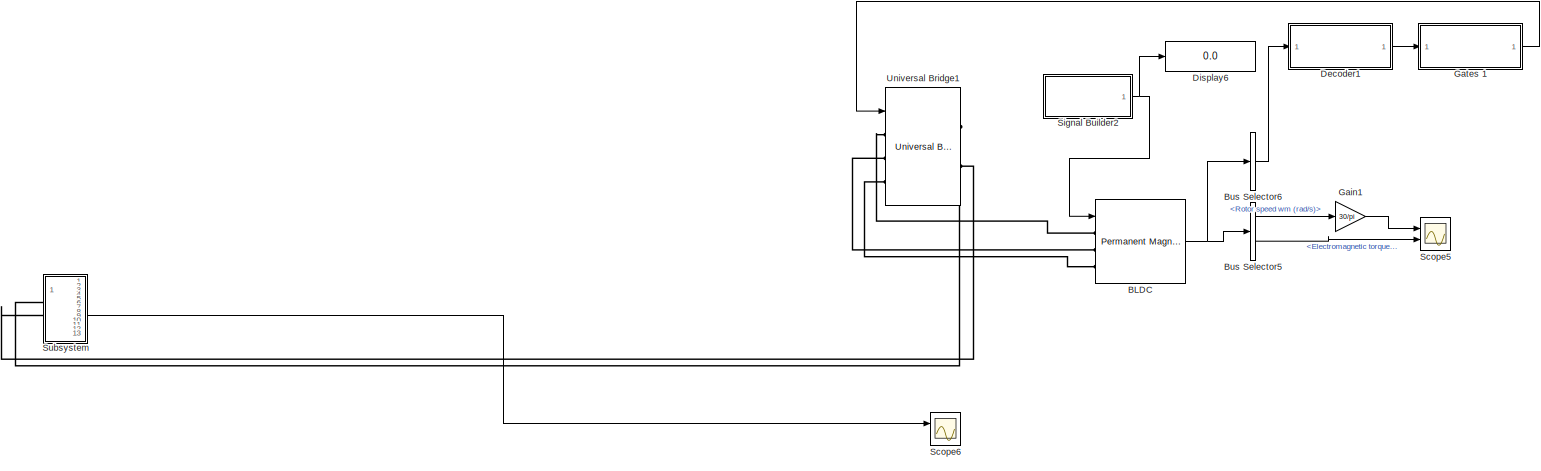
[diagram: root canvas - part 1/1, most of the canvas]
MODEL slx_0229b723f393
KIND model
CONFIG AbsTol = auto
CONFIG EnableMultiTasking = on
CONFIG FixedStep = auto
CONFIG MaxStep = auto
CONFIG MinStep = auto
CONFIG RelTol = 1e-3
CONFIG SampleTimeConstraint = Unconstrained
CONFIG SolverName = VariableStepAuto
CONFIG StartTime = 0.0
CONFIG StopTime = 50
BLOCK [Reference] BLDC  REF=powerlib/Machines/Permanent Magnet
Synchronous Machine
  Ports = [1, 1, 0, 0, 0, 3]
  SourceBlock = powerlib/Machines/Permanent Magnet\nSynchronous Machine
  SourceProductBaseCode = PS
  SourceType = Permanent Magnet Synchronous Machine
BLOCK [BusSelector] Bus Selector5
  OutputSignals = Rotor speed wm (rad/s),Electromagnetic torque Te (N*m)
  Ports = [1, 2]
BLOCK [BusSelector] Bus Selector6
  OutputAsBus = on
  OutputSignals = Hall effect signal h_a,Hall effect signal h_b,Hall effect signal h_c
  Ports = [1, 1]
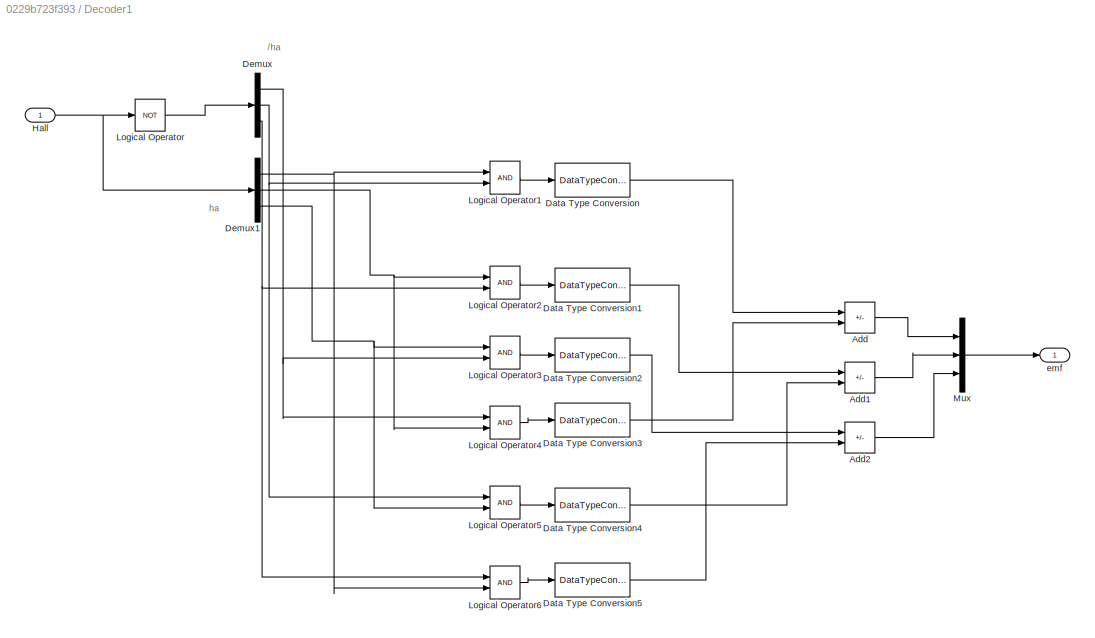
BLOCK [SubSystem] Decoder1
  Ports = [1, 1]
  RequestExecContextInheritance = off
BLOCK [Sum] Decoder1/Add
  IconShape = rectangular
  Inputs = +-
  Ports = [2, 1]
BLOCK [Sum] Decoder1/Add1
  IconShape = rectangular
  Inputs = +-
  Ports = [2, 1]
BLOCK [Sum] Decoder1/Add2
  IconShape = rectangular
  Inputs = +-
  Ports = [2, 1]
BLOCK [DataTypeConversion] Decoder1/Data Type Conversion
  RndMeth = Floor
  SaturateOnIntegerOverflow = off
BLOCK [DataTypeConversion] Decoder1/Data Type Conversion1
  RndMeth = Floor
  SaturateOnIntegerOverflow = off
BLOCK [DataTypeConversion] Decoder1/Data Type Conversion2
  RndMeth = Floor
  SaturateOnIntegerOverflow = off
BLOCK [DataTypeConversion] Decoder1/Data Type Conversion3
  RndMeth = Floor
  SaturateOnIntegerOverflow = off
BLOCK [DataTypeConversion] Decoder1/Data Type Conversion4
  RndMeth = Floor
  SaturateOnIntegerOverflow = off
BLOCK [DataTypeConversion] Decoder1/Data Type Conversion5
  RndMeth = Floor
  SaturateOnIntegerOverflow = off
BLOCK [Demux] Decoder1/Demux
  Outputs = 3
  Ports = [1, 3]
BLOCK [Demux] Decoder1/Demux1
  Outputs = 3
  Ports = [1, 3]
BLOCK [Inport] Decoder1/Hall
BLOCK [Logic] Decoder1/Logical Operator
  AllPortsSameDT = off
  Operator = NOT
  OutDataTypeStr = boolean
  Ports = [1, 1]
BLOCK [Logic] Decoder1/Logical Operator1
  AllPortsSameDT = off
  OutDataTypeStr = boolean
  Ports = [2, 1]
BLOCK [Logic] Decoder1/Logical Operator2
  AllPortsSameDT = off
  OutDataTypeStr = boolean
  Ports = [2, 1]
BLOCK [Logic] Decoder1/Logical Operator3
  AllPortsSameDT = off
  OutDataTypeStr = boolean
  Ports = [2, 1]
BLOCK [Logic] Decoder1/Logical Operator4
  AllPortsSameDT = off
  OutDataTypeStr = boolean
  Ports = [2, 1]
BLOCK [Logic] Decoder1/Logical Operator5
  AllPortsSameDT = off
  OutDataTypeStr = boolean
  Ports = [2, 1]
BLOCK [Logic] Decoder1/Logical Operator6
  AllPortsSameDT = off
  OutDataTypeStr = boolean
  Ports = [2, 1]
BLOCK [Mux] Decoder1/Mux
  DisplayOption = bar
  Inputs = 3
  Ports = [3, 1]
BLOCK [Outport] Decoder1/emf
BLOCK [Display] Display6
  Decimation = 1
  Ports = [1]
BLOCK [Gain] Gain1
  Gain = 30/pi
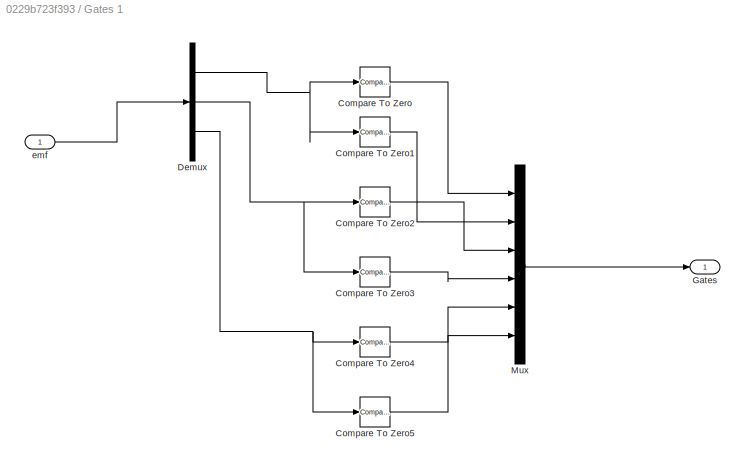
BLOCK [SubSystem] Gates 1
  Ports = [1, 1]
  RequestExecContextInheritance = off
BLOCK [Reference] Gates 1/Compare To Zero  REF=simulink/Logic and Bit
Operations/Compare
To Zero
  Ports = [1, 1]
  SourceBlock = simulink/Logic and Bit\nOperations/Compare\nTo Zero
  SourceProductBaseCode = SL
  SourceType = Compare To Zero
BLOCK [Reference] Gates 1/Compare To Zero1  REF=simulink/Logic and Bit
Operations/Compare
To Zero
  Ports = [1, 1]
  SourceBlock = simulink/Logic and Bit\nOperations/Compare\nTo Zero
  SourceProductBaseCode = SL
  SourceType = Compare To Zero
BLOCK [Reference] Gates 1/Compare To Zero2  REF=simulink/Logic and Bit
Operations/Compare
To Zero
  Ports = [1, 1]
  SourceBlock = simulink/Logic and Bit\nOperations/Compare\nTo Zero
  SourceProductBaseCode = SL
  SourceType = Compare To Zero
BLOCK [Reference] Gates 1/Compare To Zero3  REF=simulink/Logic and Bit
Operations/Compare
To Zero
  Ports = [1, 1]
  SourceBlock = simulink/Logic and Bit\nOperations/Compare\nTo Zero
  SourceProductBaseCode = SL
  SourceType = Compare To Zero
BLOCK [Reference] Gates 1/Compare To Zero4  REF=simulink/Logic and Bit
Operations/Compare
To Zero
  Ports = [1, 1]
  SourceBlock = simulink/Logic and Bit\nOperations/Compare\nTo Zero
  SourceProductBaseCode = SL
  SourceType = Compare To Zero
BLOCK [Reference] Gates 1/Compare To Zero5  REF=simulink/Logic and Bit
Operations/Compare
To Zero
  Ports = [1, 1]
  SourceBlock = simulink/Logic and Bit\nOperations/Compare\nTo Zero
  SourceProductBaseCode = SL
  SourceType = Compare To Zero
BLOCK [Demux] Gates 1/Demux
  Outputs = 3
  Ports = [1, 3]
BLOCK [Outport] Gates 1/Gates 
BLOCK [Mux] Gates 1/Mux
  DisplayOption = bar
  Inputs = 6
  Ports = [6, 1]
BLOCK [Inport] Gates 1/emf
BLOCK [Scope] Scope5
  Floating = off
  NumInputPorts = 2
  Ports = [2]
  ScopeSpecificationString = Simulink.scopes.TimeScopeBlockCfg('CurrentConfiguration', extmgr.ConfigurationSet(extmgr.Configuration('Core','General UI',true),extmgr.Configuration('Core','Source UI',true),extmgr.Configuration('Sources','WiredSimulink',true),extmgr.Configuration('Visuals','Time Domain',true,'SerializedDisplays',{struct('MinYLimReal','-100.33399','MaxYLimReal','898.28154','YLabelReal','','MinYLimMag',' 0.00000',...<+1935ch>
BLOCK [Scope] Scope6
  Floating = off
  NumInputPorts = 2
  Ports = [2]
  ScopeSpecificationString = Simulink.scopes.TimeScopeBlockCfg('CurrentConfiguration', extmgr.ConfigurationSet(extmgr.Configuration('Core','General UI',true),extmgr.Configuration('Core','Source UI',true),extmgr.Configuration('Sources','WiredSimulink',true,'DataLoggingVariableName','ScopeData1'),extmgr.Configuration('Visuals','Time Domain',true,'SerializedDisplays',{struct('MinYLimReal','-20.91839','MaxYLimReal','188.26549','Y...<+1992ch>
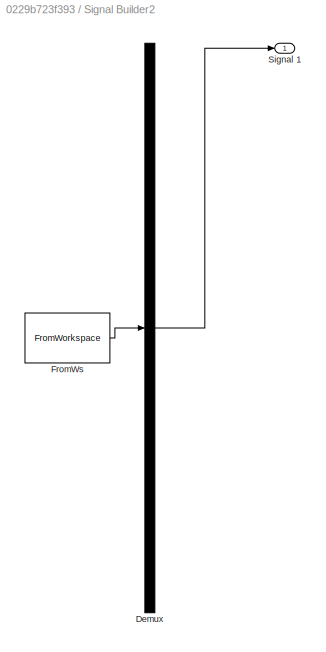
BLOCK [SubSystem] Signal Builder2
  ClipboardFcn = sigbuilder_block('clipboard');
  CloseFcn = sigbuilder_block('close');
  ContinueFcn = sigbuilder_block('continue');
  CopyFcn = sigbuilder_block('copy');
  DeleteFcn = sigbuilder_block('delete');
  LoadFcn = sigbuilder_block('load');
  MaskHideContents = on
  ModelCloseFcn = sigbuilder_block('modelClose');
  NameChangeFcn = sigbuilder_block('namechange');
  OpenFcn = sigbuilder_block('open',[5.4 30 1141.2 522.6 ]);
  PauseFcn = sigbuilder_block('pause');
  Ports = [0, 1]
  PreSaveFcn = sigbuilder_block('preSave');
  RequestExecContextInheritance = off
  StartFcn = sigbuilder_block('start');
  StopFcn = sigbuilder_block('stop');
  Tag = STV Subsys
BLOCK [Demux] Signal Builder2/Demux
  DisplayOption = none
  Outputs = 1
  Ports = [1, 1]
  Tag = STV Demux
BLOCK [FromWorkspace] Signal Builder2/FromWs
  Tag = STV FromWs
  VariableName = tuvar
BLOCK [Outport] Signal Builder2/Signal 1
  Tag = STV Outport
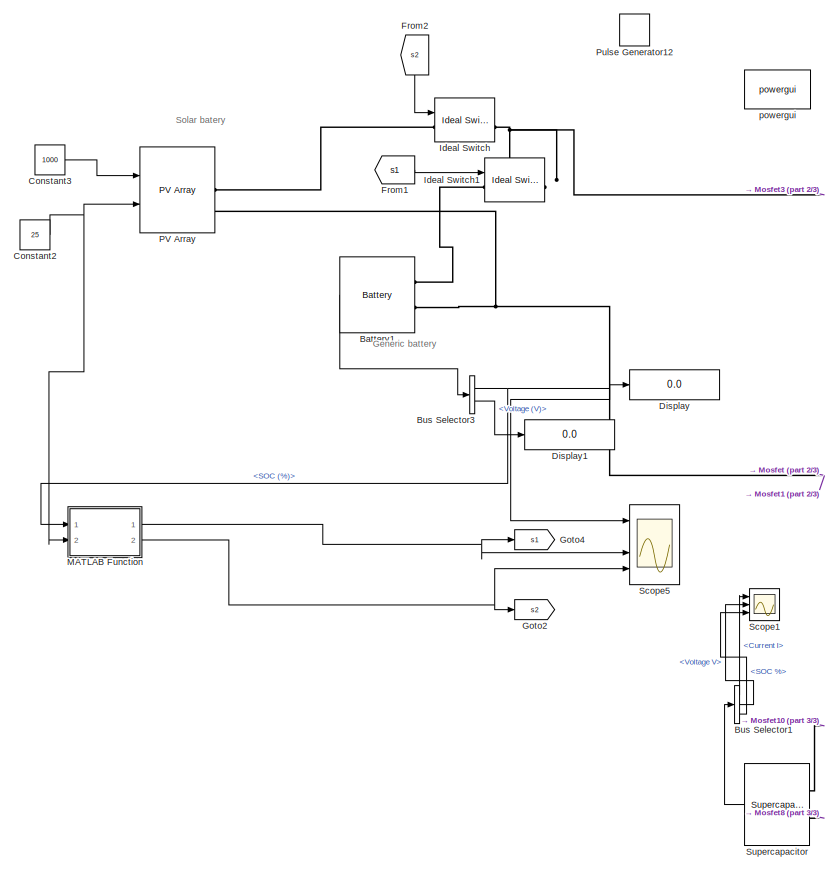
[diagram: Subsystem - part 1/3, left side, full height]
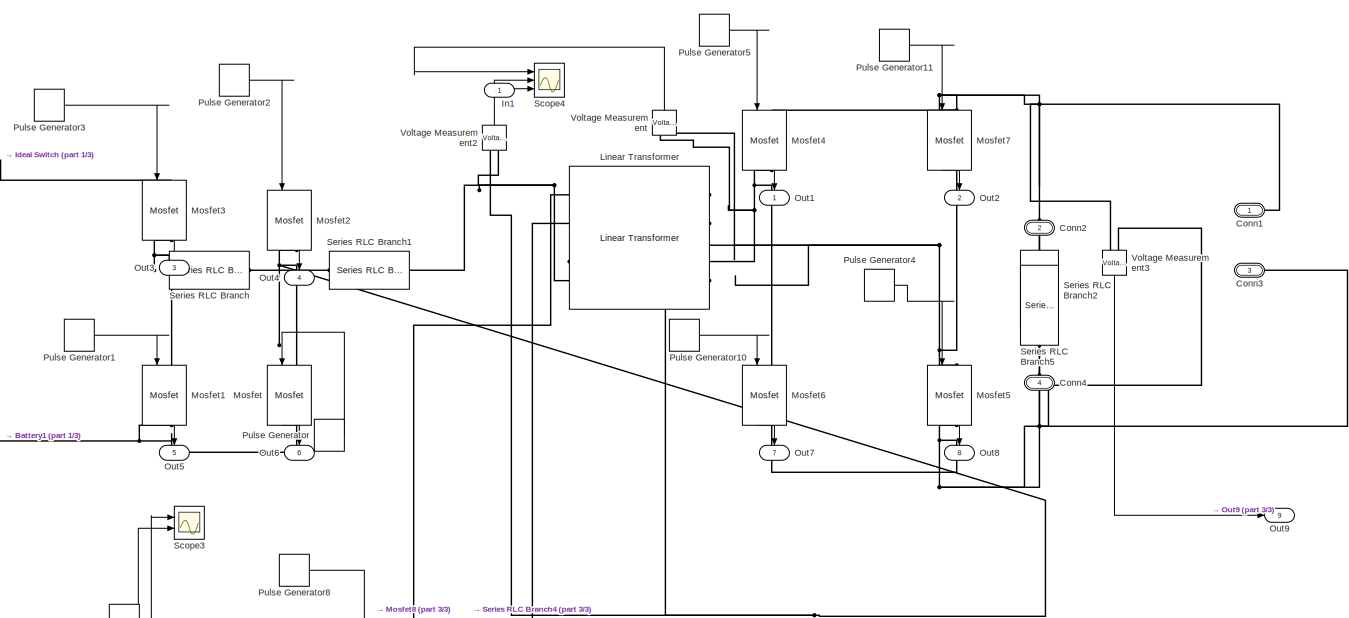
[diagram: Subsystem - part 2/3, middle right region]
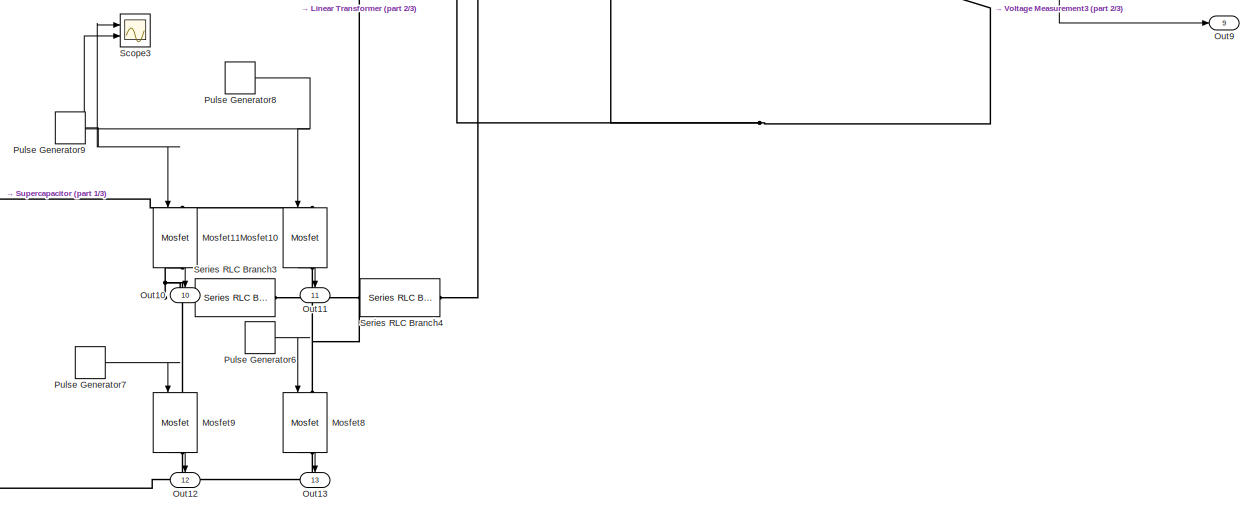
[diagram: Subsystem - part 3/3, bottom right region]
BLOCK [SubSystem] Subsystem
  Ports = [1, 13, 0, 0, 0, 3, 1]
  RequestExecContextInheritance = off
BLOCK [Reference] Subsystem/Battery1  REF=electricdrivelib/Extra Sources/Battery
  Ports = [0, 1, 0, 0, 0, 2]
  SourceBlock = electricdrivelib/Extra Sources/Battery
  SourceProductBaseCode = PS
  SourceType = Battery
BLOCK [BusSelector] Subsystem/Bus Selector1
  OutputSignals = Current I,Voltage V,SOC %
  Ports = [1, 3]
BLOCK [BusSelector] Subsystem/Bus Selector3
  OutputSignals = SOC (%),Voltage (V)
  Ports = [1, 2]
BLOCK [PMIOPort] Subsystem/Conn1
  Side = Left
BLOCK [PMIOPort] Subsystem/Conn2
  NameLocation = right
  Port = 2
  Side = Right
BLOCK [PMIOPort] Subsystem/Conn3
  Port = 3
  Side = Left
BLOCK [PMIOPort] Subsystem/Conn4
  NameLocation = right
  Port = 4
  Side = Left
BLOCK [Constant] Subsystem/Constant2
  Value = 25
BLOCK [Constant] Subsystem/Constant3
  Value = 1000
BLOCK [Display] Subsystem/Display
  Decimation = 1
  Ports = [1]
BLOCK [Display] Subsystem/Display1
  Decimation = 1
  Ports = [1]
BLOCK [From] Subsystem/From1
  GotoTag = s1
BLOCK [From] Subsystem/From2
  GotoTag = s2
  NameLocation = left
BLOCK [Goto] Subsystem/Goto2
  GotoTag = s2
BLOCK [Goto] Subsystem/Goto4
  GotoTag = s1
BLOCK [Reference] Subsystem/Ideal Switch  REF=powerlib/Power
Electronics/Ideal Switch
  Ports = [1, 1, 0, 0, 0, 1, 1]
  SourceBlock = powerlib/Power\nElectronics/Ideal Switch
  SourceProductBaseCode = PS
  SourceType = Ideal Switch
BLOCK [Reference] Subsystem/Ideal Switch1  REF=powerlib/Power
Electronics/Ideal Switch
  Ports = [1, 1, 0, 0, 0, 1, 1]
  SourceBlock = powerlib/Power\nElectronics/Ideal Switch
  SourceProductBaseCode = PS
  SourceType = Ideal Switch
BLOCK [Inport] Subsystem/In1
BLOCK [Reference] Subsystem/Linear Transformer  REF=powerlib/Elements/Linear Transformer
  NameLocation = top
  Ports = [0, 0, 0, 0, 0, 2, 4]
  SourceBlock = powerlib/Elements/Linear Transformer
  SourceProductBaseCode = PS
  SourceType = Linear Transformer
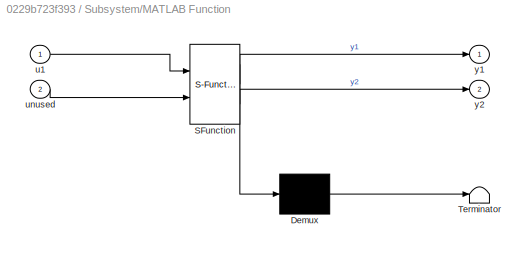
BLOCK [SubSystem] Subsystem/MATLAB Function
  ErrorFcn = Stateflow.Translate.translate
  PermitHierarchicalResolution = ExplicitOnly
  Ports = [2, 2]
  RequestExecContextInheritance = off
  SFBlockType = MATLAB Function
  TreatAsAtomicUnit = on
BLOCK [Demux] Subsystem/MATLAB Function/ Demux 
  Outputs = 1
  Ports = [1, 1]
BLOCK [S-Function] Subsystem/MATLAB Function/ SFunction 
  EnableBusSupport = on
  FunctionName = sf_sfun
  PortCounts = [2 3]
  Ports = [2, 3]
  SFcnIsStateOwnerBlock = off
  SFunctionDeploymentMode = off
  Tag = Stateflow S-Function 2
BLOCK [Terminator] Subsystem/MATLAB Function/ Terminator 
BLOCK [Inport] Subsystem/MATLAB Function/u1
BLOCK [Inport] Subsystem/MATLAB Function/unused
  Port = 2
BLOCK [Outport] Subsystem/MATLAB Function/y1
BLOCK [Outport] Subsystem/MATLAB Function/y2
  Port = 2
BLOCK [Reference] Subsystem/Mosfet  REF=powerlib/Power
Electronics/Mosfet
  NameLocation = left
  Ports = [1, 1, 0, 0, 0, 1, 1]
  SourceBlock = powerlib/Power\nElectronics/Mosfet
  SourceProductBaseCode = PS
  SourceType = Mosfet
BLOCK [Reference] Subsystem/Mosfet1  REF=powerlib/Power
Electronics/Mosfet
  NameLocation = left
  Ports = [1, 1, 0, 0, 0, 1, 1]
  SourceBlock = powerlib/Power\nElectronics/Mosfet
  SourceProductBaseCode = PS
  SourceType = Mosfet
BLOCK [Reference] Subsystem/Mosfet10  REF=powerlib/Power
Electronics/Mosfet
  NameLocation = left
  Ports = [1, 1, 0, 0, 0, 1, 1]
  SourceBlock = powerlib/Power\nElectronics/Mosfet
  SourceProductBaseCode = PS
  SourceType = Mosfet
BLOCK [Reference] Subsystem/Mosfet11  REF=powerlib/Power
Electronics/Mosfet
  NameLocation = left
  Ports = [1, 1, 0, 0, 0, 1, 1]
  SourceBlock = powerlib/Power\nElectronics/Mosfet
  SourceProductBaseCode = PS
  SourceType = Mosfet
BLOCK [Reference] Subsystem/Mosfet2  REF=powerlib/Power
Electronics/Mosfet
  NameLocation = left
  Ports = [1, 1, 0, 0, 0, 1, 1]
  SourceBlock = powerlib/Power\nElectronics/Mosfet
  SourceProductBaseCode = PS
  SourceType = Mosfet
BLOCK [Reference] Subsystem/Mosfet3  REF=powerlib/Power
Electronics/Mosfet
  NameLocation = left
  Ports = [1, 1, 0, 0, 0, 1, 1]
  SourceBlock = powerlib/Power\nElectronics/Mosfet
  SourceProductBaseCode = PS
  SourceType = Mosfet
BLOCK [Reference] Subsystem/Mosfet4  REF=powerlib/Power
Electronics/Mosfet
  NameLocation = left
  Ports = [1, 1, 0, 0, 0, 1, 1]
  SourceBlock = powerlib/Power\nElectronics/Mosfet
  SourceProductBaseCode = PS
  SourceType = Mosfet
BLOCK [Reference] Subsystem/Mosfet5  REF=powerlib/Power
Electronics/Mosfet
  NameLocation = left
  Ports = [1, 1, 0, 0, 0, 1, 1]
  SourceBlock = powerlib/Power\nElectronics/Mosfet
  SourceProductBaseCode = PS
  SourceType = Mosfet
BLOCK [Reference] Subsystem/Mosfet6  REF=powerlib/Power
Electronics/Mosfet
  NameLocation = left
  Ports = [1, 1, 0, 0, 0, 1, 1]
  SourceBlock = powerlib/Power\nElectronics/Mosfet
  SourceProductBaseCode = PS
  SourceType = Mosfet
BLOCK [Reference] Subsystem/Mosfet7  REF=powerlib/Power
Electronics/Mosfet
  NameLocation = left
  Ports = [1, 1, 0, 0, 0, 1, 1]
  SourceBlock = powerlib/Power\nElectronics/Mosfet
  SourceProductBaseCode = PS
  SourceType = Mosfet
BLOCK [Reference] Subsystem/Mosfet8  REF=powerlib/Power
Electronics/Mosfet
  NameLocation = left
  Ports = [1, 1, 0, 0, 0, 1, 1]
  SourceBlock = powerlib/Power\nElectronics/Mosfet
  SourceProductBaseCode = PS
  SourceType = Mosfet
BLOCK [Reference] Subsystem/Mosfet9  REF=powerlib/Power
Electronics/Mosfet
  NameLocation = left
  Ports = [1, 1, 0, 0, 0, 1, 1]
  SourceBlock = powerlib/Power\nElectronics/Mosfet
  SourceProductBaseCode = PS
  SourceType = Mosfet
BLOCK [Outport] Subsystem/Out1
  NameLocation = right
BLOCK [Outport] Subsystem/Out10
  NameLocation = right
  Port = 10
BLOCK [Outport] Subsystem/Out11
  NameLocation = right
  Port = 11
BLOCK [Outport] Subsystem/Out12
  NameLocation = right
  Port = 12
BLOCK [Outport] Subsystem/Out13
  NameLocation = right
  Port = 13
BLOCK [Outport] Subsystem/Out2
  NameLocation = right
  Port = 2
BLOCK [Outport] Subsystem/Out3
  NameLocation = right
  Port = 3
BLOCK [Outport] Subsystem/Out4
  NameLocation = right
  Port = 4
BLOCK [Outport] Subsystem/Out5
  NameLocation = right
  Port = 5
BLOCK [Outport] Subsystem/Out6
  NameLocation = right
  Port = 6
BLOCK [Outport] Subsystem/Out7
  NameLocation = right
  Port = 7
BLOCK [Outport] Subsystem/Out8
  NameLocation = right
  Port = 8
BLOCK [Outport] Subsystem/Out9
  Port = 9
BLOCK [Reference] Subsystem/PV Array  REF=re_lib/Solar/PV Array
  Ports = [2, 1, 0, 0, 0, 0, 2]
  SourceBlock = re_lib/Solar/PV Array
  SourceProductBaseCode = PS
  SourceType = PV array
BLOCK [DiscretePulseGenerator] Subsystem/Pulse Generator
  Period = 1/100e3
  Ports = [0, 1]
  PulseType = Time based
  PulseWidth = 50
BLOCK [DiscretePulseGenerator] Subsystem/Pulse Generator1
  Period = 1/100e3
  PhaseDelay = 5e-6
  Ports = [0, 1]
  PulseType = Time based
  PulseWidth = 50
BLOCK [DiscretePulseGenerator] Subsystem/Pulse Generator10
  Period = 1/100e3
  PhaseDelay = 5e-6
  Ports = [0, 1]
  PulseType = Time based
  PulseWidth = 50
BLOCK [DiscretePulseGenerator] Subsystem/Pulse Generator11
  Period = 1/100e3
  PhaseDelay = 5e-6
  Ports = [0, 1]
  PulseType = Time based
  PulseWidth = 50
BLOCK [DiscretePulseGenerator] Subsystem/Pulse Generator12
  Period = 1/50
  Ports = [0, 1]
  PulseType = Time based
  PulseWidth = 60
BLOCK [DiscretePulseGenerator] Subsystem/Pulse Generator2
  Period = 1/100e3
  PhaseDelay = 5e-6
  Ports = [0, 1]
  PulseType = Time based
  PulseWidth = 50
BLOCK [DiscretePulseGenerator] Subsystem/Pulse Generator3
  Period = 1/100e3
  Ports = [0, 1]
  PulseType = Time based
  PulseWidth = 50
BLOCK [DiscretePulseGenerator] Subsystem/Pulse Generator4
  Period = 1/100e3
  Ports = [0, 1]
  PulseType = Time based
  PulseWidth = 50
BLOCK [DiscretePulseGenerator] Subsystem/Pulse Generator5
  Period = 1/100e3
  Ports = [0, 1]
  PulseType = Time based
  PulseWidth = 50
BLOCK [DiscretePulseGenerator] Subsystem/Pulse Generator6
  Period = 1/100e3
  Ports = [0, 1]
  PulseType = Time based
  PulseWidth = 50
BLOCK [DiscretePulseGenerator] Subsystem/Pulse Generator7
  Period = 1/100e3
  PhaseDelay = 5e-6
  Ports = [0, 1]
  PulseType = Time based
  PulseWidth = 50
BLOCK [DiscretePulseGenerator] Subsystem/Pulse Generator8
  Period = 1/100e3
  PhaseDelay = 5e-6
  Ports = [0, 1]
  PulseType = Time based
  PulseWidth = 50
BLOCK [DiscretePulseGenerator] Subsystem/Pulse Generator9
  Period = 1/100e3
  Ports = [0, 1]
  PulseType = Time based
  PulseWidth = 50
BLOCK [Scope] Subsystem/Scope1
  Floating = off
  NumInputPorts = 3
  Ports = [3]
  ScopeSpecificationString = Simulink.scopes.TimeScopeBlockCfg('CurrentConfiguration', extmgr.ConfigurationSet(extmgr.Configuration('Core','General UI',true),extmgr.Configuration('Core','Source UI',true),extmgr.Configuration('Sources','WiredSimulink',true,'DataLoggingVariableName','ScopeData2'),extmgr.Configuration('Visuals','Time Domain',true,'SerializedDisplays',{struct('MinYLimReal','-0.32217','MaxYLimReal','2.90307','YLab...<+2731ch>
BLOCK [Scope] Subsystem/Scope3
  Floating = off
  NumInputPorts = 2
  Ports = [2]
  ScopeSpecificationString = Simulink.scopes.TimeScopeBlockCfg('CurrentConfiguration', extmgr.ConfigurationSet(extmgr.Configuration('Core','General UI',true),extmgr.Configuration('Core','Source UI',true),extmgr.Configuration('Sources','WiredSimulink',true,'DataLoggingVariableName','ScopeData4','DataLoggingLimitDataPoints',true,'DataLoggingSaveFormat','Array','DataLoggingDecimation','1','DataLoggingDecimateData',true),extmgr.C...<+1540ch>
BLOCK [Scope] Subsystem/Scope4
  Floating = off
  NumInputPorts = 3
  Ports = [3]
  ScopeSpecificationString = Simulink.scopes.TimeScopeBlockCfg('CurrentConfiguration', extmgr.ConfigurationSet(extmgr.Configuration('Core','General UI',true),extmgr.Configuration('Core','Source UI',true),extmgr.Configuration('Sources','WiredSimulink',true,'DataLoggingVariableName','ScopeData5'),extmgr.Configuration('Visuals','Time Domain',true,'SerializedDisplays',{struct('MinYLimReal','0.00011','MaxYLimReal','0.00031','YLabe...<+2698ch>
BLOCK [Scope] Subsystem/Scope5
  Floating = off
  NumInputPorts = 4
  Ports = [4]
  ScopeSpecificationString = Simulink.scopes.TimeScopeBlockCfg('CurrentConfiguration', extmgr.ConfigurationSet(extmgr.Configuration('Core','General UI',true),extmgr.Configuration('Core','Source UI',true),extmgr.Configuration('Sources','WiredSimulink',true,'DataLoggingVariableName','ScopeData1','DataLoggingLimitDataPoints',true,'DataLoggingSaveFormat','Array','DataLoggingDecimation','1','DataLoggingDecimateData',true),extmgr.C...<+3494ch>
BLOCK [Reference] Subsystem/Series RLC Branch  REF=powerlib/Elements/Series RLC Branch
  Ports = [0, 0, 0, 0, 0, 1, 1]
  SourceBlock = powerlib/Elements/Series RLC Branch
  SourceProductBaseCode = PS
  SourceType = Series RLC Branch
BLOCK [Reference] Subsystem/Series RLC Branch1  REF=powerlib/Elements/Series RLC Branch
  Ports = [0, 0, 0, 0, 0, 1, 1]
  SourceBlock = powerlib/Elements/Series RLC Branch
  SourceProductBaseCode = PS
  SourceType = Series RLC Branch
BLOCK [Reference] Subsystem/Series RLC Branch2  REF=powerlib/Elements/Series RLC Branch
  NameLocation = left
  Ports = [0, 0, 0, 0, 0, 1, 1]
  SourceBlock = powerlib/Elements/Series RLC Branch
  SourceProductBaseCode = PS
  SourceType = Series RLC Branch
BLOCK [Reference] Subsystem/Series RLC Branch3  REF=powerlib/Elements/Series RLC Branch
  Ports = [0, 0, 0, 0, 0, 1, 1]
  SourceBlock = powerlib/Elements/Series RLC Branch
  SourceProductBaseCode = PS
  SourceType = Series RLC Branch
BLOCK [Reference] Subsystem/Series RLC Branch4  REF=powerlib/Elements/Series RLC Branch
  Ports = [0, 0, 0, 0, 0, 1, 1]
  SourceBlock = powerlib/Elements/Series RLC Branch
  SourceProductBaseCode = PS
  SourceType = Series RLC Branch
BLOCK [Reference] Subsystem/Series RLC Branch5  REF=powerlib/Elements/Series RLC Branch
  NameLocation = left
  Ports = [0, 0, 0, 0, 0, 1, 1]
  SourceBlock = powerlib/Elements/Series RLC Branch
  SourceProductBaseCode = PS
  SourceType = Series RLC Branch
BLOCK [Reference] Subsystem/Supercapacitor  REF=electricdrivelib/Extra Sources/Supercapacitor
  Ports = [0, 1, 0, 0, 0, 2]
  SourceBlock = electricdrivelib/Extra Sources/Supercapacitor
  SourceProductBaseCode = PS
  SourceType = Supercapacitor
BLOCK [Reference] Subsystem/Voltage Measurement  REF=powerlib/Measurements/Voltage Measurement
  NameLocation = right
  Ports = [0, 1, 0, 0, 0, 2]
  SourceBlock = powerlib/Measurements/Voltage Measurement
  SourceProductBaseCode = PS
  SourceType = Voltage Measurement
  UserDataPersistent = on
BLOCK [Reference] Subsystem/Voltage Measurement2  REF=powerlib/Measurements/Voltage Measurement
  NameLocation = right
  Ports = [0, 1, 0, 0, 0, 2]
  SourceBlock = powerlib/Measurements/Voltage Measurement
  SourceProductBaseCode = PS
  SourceType = Voltage Measurement
  UserDataPersistent = on
BLOCK [Reference] Subsystem/Voltage Measurement3  REF=powerlib/Measurements/Voltage Measurement
  NameLocation = left
  Ports = [0, 1, 0, 0, 0, 2]
  SourceBlock = powerlib/Measurements/Voltage Measurement
  SourceProductBaseCode = PS
  SourceType = Voltage Measurement
  UserDataPersistent = on
BLOCK [Reference] Subsystem/powergui  REF=powerlib/powergui
  Ports = []
  Priority = 1
  SourceBlock = powerlib/powergui
  SourceProductBaseCode = PS
  SourceType = PSB option menu block
BLOCK [Reference] Universal Bridge1  REF=powerlib/Power
Electronics/Universal Bridge
  Ports = [1, 0, 0, 0, 0, 3, 2]
  SourceBlock = powerlib/Power\nElectronics/Universal Bridge
  SourceProductBaseCode = PS
  SourceType = Universal Bridge
ANNOTATION Decoder1: /ha
ANNOTATION Decoder1: ha
ANNOTATION Subsystem: Generic battery
ANNOTATION Subsystem: Solar batery
NET BLDC:1 -> Bus Selector5:1, Bus Selector6:1
LINE Bus Selector5:1 -> Gain1:1
LINE Bus Selector5:2 -> Scope5:2
LINE Bus Selector6:1 -> Decoder1:1
LINE Decoder1/Add1:1 -> Decoder1/Mux:2
LINE Decoder1/Add2:1 -> Decoder1/Mux:3
LINE Decoder1/Add:1 -> Decoder1/Mux:1
LINE Decoder1/Data Type Conversion1:1 -> Decoder1/Add1:1
LINE Decoder1/Data Type Conversion2:1 -> Decoder1/Add2:1
LINE Decoder1/Data Type Conversion3:1 -> Decoder1/Add:2
LINE Decoder1/Data Type Conversion4:1 -> Decoder1/Add1:2
LINE Decoder1/Data Type Conversion5:1 -> Decoder1/Add2:2
LINE Decoder1/Data Type Conversion:1 -> Decoder1/Add:1
NET Decoder1/Demux1:1 -> Decoder1/Logical Operator1:1, Decoder1/Logical Operator6:2
NET Decoder1/Demux1:2 -> Decoder1/Logical Operator2:1, Decoder1/Logical Operator4:2
NET Decoder1/Demux1:3 -> Decoder1/Logical Operator3:1, Decoder1/Logical Operator5:2
NET Decoder1/Demux:1 -> Decoder1/Logical Operator3:2, Decoder1/Logical Operator4:1
NET Decoder1/Demux:2 -> Decoder1/Logical Operator1:2, Decoder1/Logical Operator5:1
NET Decoder1/Demux:3 -> Decoder1/Logical Operator2:2, Decoder1/Logical Operator6:1
NET Decoder1/Hall:1 -> Decoder1/Demux1:1, Decoder1/Logical Operator:1
LINE Decoder1/Logical Operator1:1 -> Decoder1/Data Type Conversion:1
LINE Decoder1/Logical Operator2:1 -> Decoder1/Data Type Conversion1:1
LINE Decoder1/Logical Operator3:1 -> Decoder1/Data Type Conversion2:1
LINE Decoder1/Logical Operator4:1 -> Decoder1/Data Type Conversion3:1
LINE Decoder1/Logical Operator5:1 -> Decoder1/Data Type Conversion4:1
LINE Decoder1/Logical Operator6:1 -> Decoder1/Data Type Conversion5:1
LINE Decoder1/Logical Operator:1 -> Decoder1/Demux:1
LINE Decoder1/Mux:1 -> Decoder1/emf:1
LINE Decoder1:1 -> Gates 1:1
LINE Gain1:1 -> Scope5:1
LINE Gates 1/Compare To Zero1:1 -> Gates 1/Mux:2
LINE Gates 1/Compare To Zero2:1 -> Gates 1/Mux:3
LINE Gates 1/Compare To Zero3:1 -> Gates 1/Mux:4
LINE Gates 1/Compare To Zero4:1 -> Gates 1/Mux:5
LINE Gates 1/Compare To Zero5:1 -> Gates 1/Mux:6
LINE Gates 1/Compare To Zero:1 -> Gates 1/Mux:1
NET Gates 1/Demux:1 -> Gates 1/Compare To Zero1:1, Gates 1/Compare To Zero:1
NET Gates 1/Demux:2 -> Gates 1/Compare To Zero2:1, Gates 1/Compare To Zero3:1
NET Gates 1/Demux:3 -> Gates 1/Compare To Zero4:1, Gates 1/Compare To Zero5:1
LINE Gates 1/Mux:1 -> Gates 1/Gates :1
LINE Gates 1/emf:1 -> Gates 1/Demux:1
LINE Gates 1:1 -> Universal Bridge1:1
NET Signal Builder2:1 -> BLDC:1, Display6:1
LINE Subsystem/Battery1:1 -> Subsystem/Bus Selector3:1
LINE Subsystem/Bus Selector1:1 -> Subsystem/Scope1:1
LINE Subsystem/Bus Selector1:2 -> Subsystem/Scope1:2
LINE Subsystem/Bus Selector1:3 -> Subsystem/Scope1:3
NET Subsystem/Bus Selector3:1 -> Subsystem/Display:1, Subsystem/MATLAB Function:1, Subsystem/Scope5:1
LINE Subsystem/Bus Selector3:2 -> Subsystem/Display1:1
NET Subsystem/Constant2:1 -> Subsystem/MATLAB Function:2, Subsystem/PV Array:2
LINE Subsystem/Constant3:1 -> Subsystem/PV Array:1
LINE Subsystem/From1:1 -> Subsystem/Ideal Switch1:1
LINE Subsystem/From2:1 -> Subsystem/Ideal Switch:1
LINE Subsystem/In1:1 -> Subsystem/Scope4:3
NET Subsystem/MATLAB Function:1 -> Subsystem/Goto4:1, Subsystem/Scope5:3
NET Subsystem/MATLAB Function:2 -> Subsystem/Goto2:1, Subsystem/Scope5:4
LINE Subsystem/Mosfet10:1 -> Subsystem/Out11:1
LINE Subsystem/Mosfet11:1 -> Subsystem/Out10:1
LINE Subsystem/Mosfet1:1 -> Subsystem/Out5:1
LINE Subsystem/Mosfet2:1 -> Subsystem/Out4:1
LINE Subsystem/Mosfet3:1 -> Subsystem/Out3:1
LINE Subsystem/Mosfet4:1 -> Subsystem/Out1:1
LINE Subsystem/Mosfet5:1 -> Subsystem/Out8:1
LINE Subsystem/Mosfet6:1 -> Subsystem/Out7:1
LINE Subsystem/Mosfet7:1 -> Subsystem/Out2:1
LINE Subsystem/Mosfet8:1 -> Subsystem/Out13:1
LINE Subsystem/Mosfet9:1 -> Subsystem/Out12:1
LINE Subsystem/Mosfet:1 -> Subsystem/Out6:1
LINE Subsystem/Pulse Generator10:1 -> Subsystem/Mosfet6:1
LINE Subsystem/Pulse Generator11:1 -> Subsystem/Mosfet7:1
LINE Subsystem/Pulse Generator1:1 -> Subsystem/Mosfet1:1
LINE Subsystem/Pulse Generator2:1 -> Subsystem/Mosfet2:1
LINE Subsystem/Pulse Generator3:1 -> Subsystem/Mosfet3:1
LINE Subsystem/Pulse Generator4:1 -> Subsystem/Mosfet5:1
LINE Subsystem/Pulse Generator5:1 -> Subsystem/Mosfet4:1
LINE Subsystem/Pulse Generator6:1 -> Subsystem/Mosfet8:1
LINE Subsystem/Pulse Generator7:1 -> Subsystem/Mosfet9:1
NET Subsystem/Pulse Generator8:1 -> Subsystem/Mosfet10:1, Subsystem/Scope3:2
NET Subsystem/Pulse Generator9:1 -> Subsystem/Mosfet11:1, Subsystem/Scope3:1
LINE Subsystem/Pulse Generator:1 -> Subsystem/Mosfet:1
LINE Subsystem/Supercapacitor:1 -> Subsystem/Bus Selector1:1
LINE Subsystem/Voltage Measurement2:1 -> Subsystem/Scope4:2
LINE Subsystem/Voltage Measurement3:1 -> Subsystem/Out9:1
LINE Subsystem/Voltage Measurement:1 -> Subsystem/Scope4:1
LINE Subsystem:9 -> Scope6:1
PLINE BLDC:LConn1 -- Universal Bridge1:LConn1
PLINE BLDC:LConn2 -- Universal Bridge1:LConn2
PLINE BLDC:LConn3 -- Universal Bridge1:LConn3
PLINE Subsystem/Battery1:LConn1 -- Subsystem/Ideal Switch1:LConn1
PNET net1: Subsystem/Battery1:LConn2 -- Subsystem/Mosfet1:RConn1 -- Subsystem/Mosfet:RConn1 -- Subsystem/PV Array:RConn2
PNET net2: Subsystem/Conn1:RConn1 -- Subsystem/Mosfet4:LConn1 -- Subsystem/Mosfet7:LConn1 -- Subsystem/Series RLC Branch2:LConn1 -- Subsystem/Voltage Measurement3:LConn1
PLINE Subsystem/Conn2:RConn1 -- Subsystem/Series RLC Branch5:LConn1
PNET net3: Subsystem/Conn3:RConn1 -- Subsystem/Mosfet5:RConn1 -- Subsystem/Mosfet6:RConn1 -- Subsystem/Series RLC Branch2:RConn1 -- Subsystem/Voltage Measurement3:LConn2
PLINE Subsystem/Conn4:RConn1 -- Subsystem/Series RLC Branch5:RConn1
PNET net4: Subsystem/Ideal Switch1:RConn1 -- Subsystem/Ideal Switch:RConn1 -- Subsystem/Mosfet3:LConn1
PLINE Subsystem/Ideal Switch:LConn1 -- Subsystem/PV Array:RConn1
PNET net5: Subsystem/Linear Transformer:LConn1 -- Subsystem/Mosfet5:LConn1 -- Subsystem/Mosfet7:RConn1 -- Subsystem/Voltage Measurement:LConn2
PNET net6: Subsystem/Linear Transformer:LConn2 -- Subsystem/Mosfet4:RConn1 -- Subsystem/Mosfet6:LConn1 -- Subsystem/Voltage Measurement:LConn1
PNET net7: Subsystem/Linear Transformer:RConn1 -- Subsystem/Mosfet10:RConn1 -- Subsystem/Mosfet8:LConn1
PLINE Subsystem/Linear Transformer:RConn2 -- Subsystem/Series RLC Branch4:RConn1
PNET net8: Subsystem/Linear Transformer:RConn3 -- Subsystem/Mosfet2:RConn1 -- Subsystem/Mosfet:LConn1 -- Subsystem/Voltage Measurement2:LConn1
PNET net9: Subsystem/Linear Transformer:RConn4 -- Subsystem/Series RLC Branch1:RConn1 -- Subsystem/Voltage Measurement2:LConn2
PNET net10: Subsystem/Mosfet10:LConn1 -- Subsystem/Mosfet11:LConn1 -- Subsystem/Supercapacitor:LConn1
PNET net11: Subsystem/Mosfet11:RConn1 -- Subsystem/Mosfet9:LConn1 -- Subsystem/Series RLC Branch3:LConn1
PNET net12: Subsystem/Mosfet1:LConn1 -- Subsystem/Mosfet3:RConn1 -- Subsystem/Series RLC Branch:LConn1
PNET net13: Subsystem/Mosfet8:RConn1 -- Subsystem/Mosfet9:RConn1 -- Subsystem/Supercapacitor:LConn2
PLINE Subsystem/Series RLC Branch1:LConn1 -- Subsystem/Series RLC Branch:RConn1
PLINE Subsystem/Series RLC Branch3:RConn1 -- Subsystem/Series RLC Branch4:LConn1
PLINE Subsystem:LConn1 -- Universal Bridge1:RConn1
PLINE Subsystem:LConn2 -- Universal Bridge1:RConn2
note: NET lines group one-source signal fan-out (src -> all destinations, sorted); 1:1 wires keep LINE; PNET lines group multi-terminal physical nets as a canonical sorted terminal list (undirected conserving connections); 2-terminal nets keep the pairwise PLINE form
CHART Subsystem/MATLAB Function states=1 transitions=1
  STATE_LABEL 'eML_blk_kernel()'
  STATE_LABEL 'SCRIPT:\nfunction [y1,y2] = fcn(u1,~)\nif u1>50.367\n    y1=1;\n    y2=0;\nelse\n    y1=0;\n    y2=1;\nend\n\n    \n\n    \n'
CHART  states=0 transitions=0
